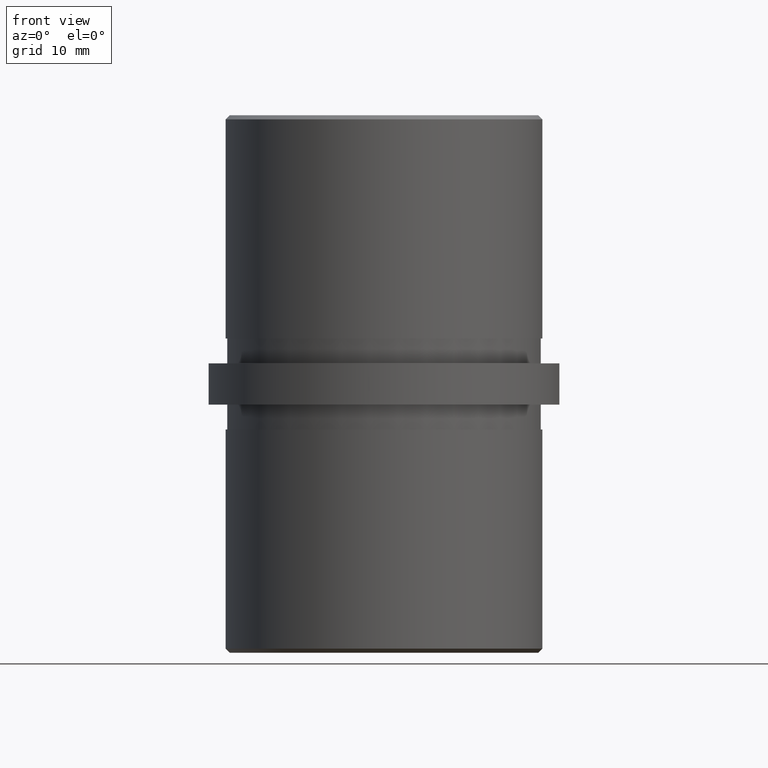
[diagram: clean part render]
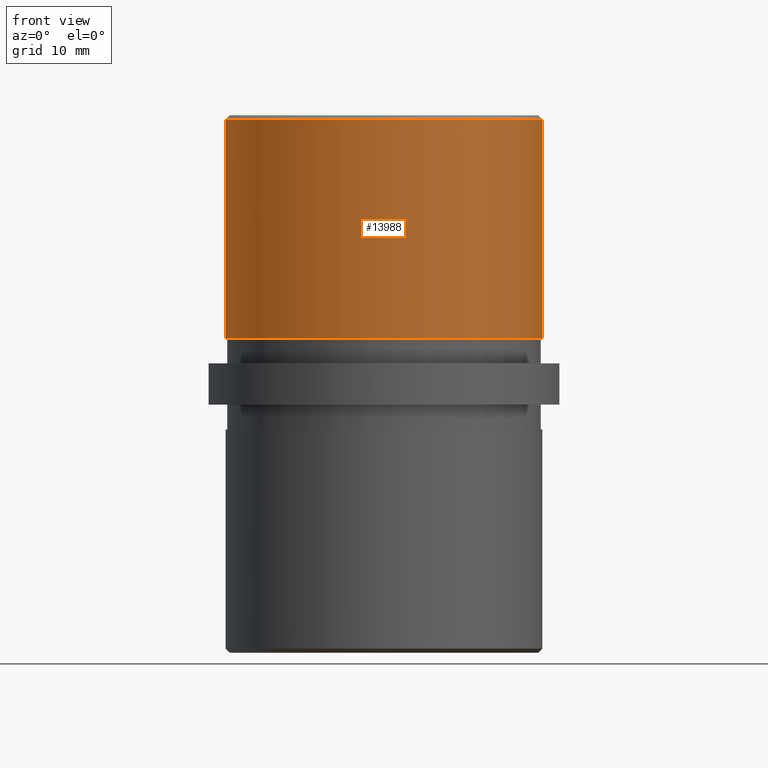
[diagram: same view with one face highlighted and labeled with its STEP entity id]
A machine part, front view. The second image highlights one B-rep face of the part: STEP entity #13988.
In plain terms, the highlighted cylindrical surface (partial cylindrical patch) has radius 19.15 mm, axis along (-0, -0, -1).
Its self-contained STEP definition (entity closure, byte-faithful):
#896 = VERTEX_POINT ( 'NONE', #15629 ) ;
#934 = LINE ( 'NONE', #7078, #16070 ) ;
#1327 = DIRECTION ( 'NONE',  ( -0.0000000000000000000, -0.0000000000000000000, -1.000000000000000000 ) ) ;
#1768 = CARTESIAN_POINT ( 'NONE',  ( 0.0000000000000000000, 0.0000000000000000000, 32.00000000000002100 ) ) ;
#2176 = EDGE_LOOP ( 'NONE', ( #17279, #2847, #15919, #6228 ) ) ;
#2612 = EDGE_CURVE ( 'NONE', #896, #12208, #17639, .T. ) ;
#2847 = ORIENTED_EDGE ( 'NONE', *, *, #4348, .T. ) ;
#4348 = EDGE_CURVE ( 'NONE', #16794, #896, #10954, .T. ) ;
#5330 = DIRECTION ( 'NONE',  ( -0.0000000000000000000, -0.0000000000000000000, -1.000000000000000000 ) ) ;
#6228 = ORIENTED_EDGE ( 'NONE', *, *, #7866, .T. ) ;
#7078 = CARTESIAN_POINT ( 'NONE',  ( 19.15000000000000200, 2.345198620367181800E-015, 32.50000000000000000 ) ) ;
#7342 = CARTESIAN_POINT ( 'NONE',  ( -19.15000000000000200, 0.0000000000000000000, 5.500000000000000000 ) ) ;
#7592 = DIRECTION ( 'NONE',  ( 0.0000000000000000000, 0.0000000000000000000, -1.000000000000000000 ) ) ;
#7779 = EDGE_CURVE ( 'NONE', #16794, #8207, #934, .T. ) ;
#7866 = EDGE_CURVE ( 'NONE', #12208, #8207, #14220, .T. ) ;
#8207 = VERTEX_POINT ( 'NONE', #12387 ) ;
#9739 = AXIS2_PLACEMENT_3D ( 'NONE', #12151, #13704, #10927 ) ;
#10410 = DIRECTION ( 'NONE',  ( 1.000000000000000000, 0.0000000000000000000, 0.0000000000000000000 ) ) ;
#10927 = DIRECTION ( 'NONE',  ( -1.000000000000000000, 0.0000000000000000000, 0.0000000000000000000 ) ) ;
#10954 = CIRCLE ( 'NONE', #17177, 19.15000000000000200 ) ;
#10995 = AXIS2_PLACEMENT_3D ( 'NONE', #14833, #11824, #10410 ) ;
#11688 = VECTOR ( 'NONE', #5330, 1000.000000000000000 ) ;
#11824 = DIRECTION ( 'NONE',  ( 0.0000000000000000000, 0.0000000000000000000, 1.000000000000000000 ) ) ;
#12151 = CARTESIAN_POINT ( 'NONE',  ( 0.0000000000000000000, 0.0000000000000000000, 32.50000000000000000 ) ) ;
#12198 = CYLINDRICAL_SURFACE ( 'NONE', #9739, 19.15000000000000200 ) ;
#12208 = VERTEX_POINT ( 'NONE', #7342 ) ;
#12387 = CARTESIAN_POINT ( 'NONE',  ( 19.15000000000000200, 2.345198620367181800E-015, 5.500000000000000000 ) ) ;
#13216 = FACE_OUTER_BOUND ( 'NONE', #2176, .T. ) ;
#13704 = DIRECTION ( 'NONE',  ( -0.0000000000000000000, -0.0000000000000000000, -1.000000000000000000 ) ) ;
#13988 = ADVANCED_FACE ( 'NONE', ( #13216 ), #12198, .T. ) ;
#14220 = CIRCLE ( 'NONE', #10995, 19.15000000000000200 ) ;
#14833 = CARTESIAN_POINT ( 'NONE',  ( 0.0000000000000000000, 0.0000000000000000000, 5.500000000000000000 ) ) ;
#15523 = CARTESIAN_POINT ( 'NONE',  ( -19.15000000000000200, 0.0000000000000000000, 32.50000000000000000 ) ) ;
#15629 = CARTESIAN_POINT ( 'NONE',  ( -19.15000000000000200, 0.0000000000000000000, 32.00000000000002100 ) ) ;
#15919 = ORIENTED_EDGE ( 'NONE', *, *, #2612, .T. ) ;
#16070 = VECTOR ( 'NONE', #1327, 1000.000000000000000 ) ;
#16473 = CARTESIAN_POINT ( 'NONE',  ( 19.15000000000000200, 2.345198620367181800E-015, 32.00000000000002100 ) ) ;
#16794 = VERTEX_POINT ( 'NONE', #16473 ) ;
#17177 = AXIS2_PLACEMENT_3D ( 'NONE', #1768, #7592, #17658 ) ;
#17279 = ORIENTED_EDGE ( 'NONE', *, *, #7779, .F. ) ;
#17639 = LINE ( 'NONE', #15523, #11688 ) ;
#17658 = DIRECTION ( 'NONE',  ( 1.000000000000000000, 0.0000000000000000000, 0.0000000000000000000 ) ) ;